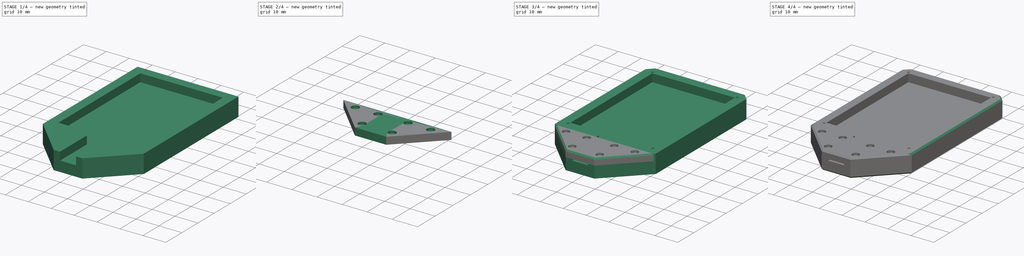
[diagram: build sequence overview — one tinted view per stage of 4, left to right]
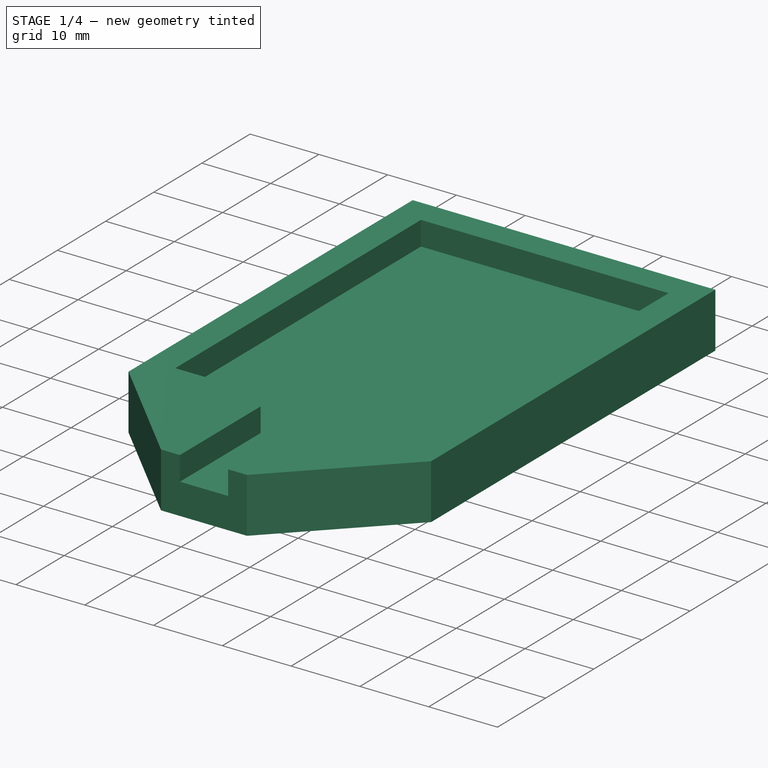
[diagram: stage 1 of 4 — iso view after this stage's code; geometry added in this stage tinted green]
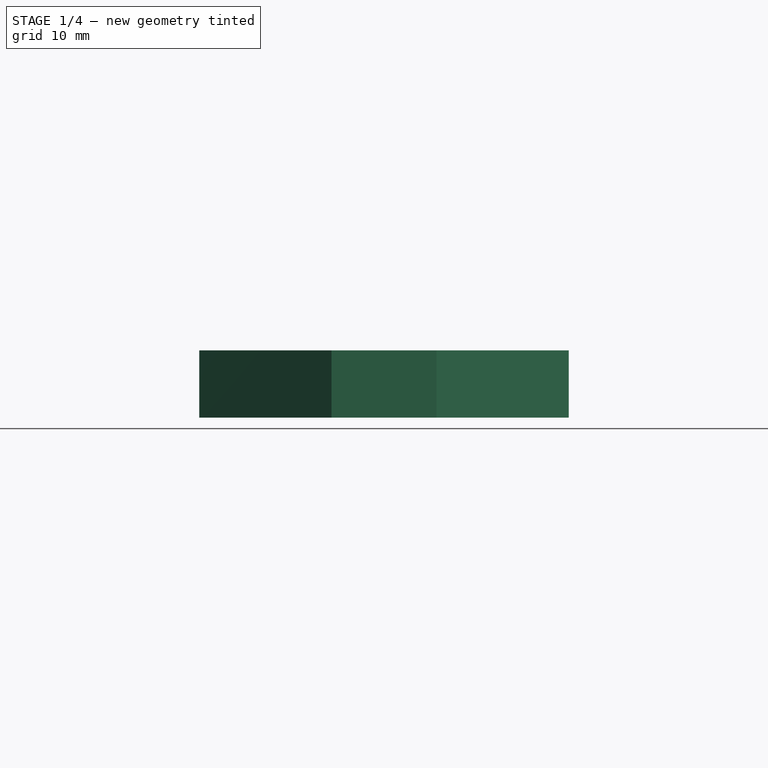
[diagram: stage 1 of 4 — front view after this stage's code; geometry added in this stage tinted green]
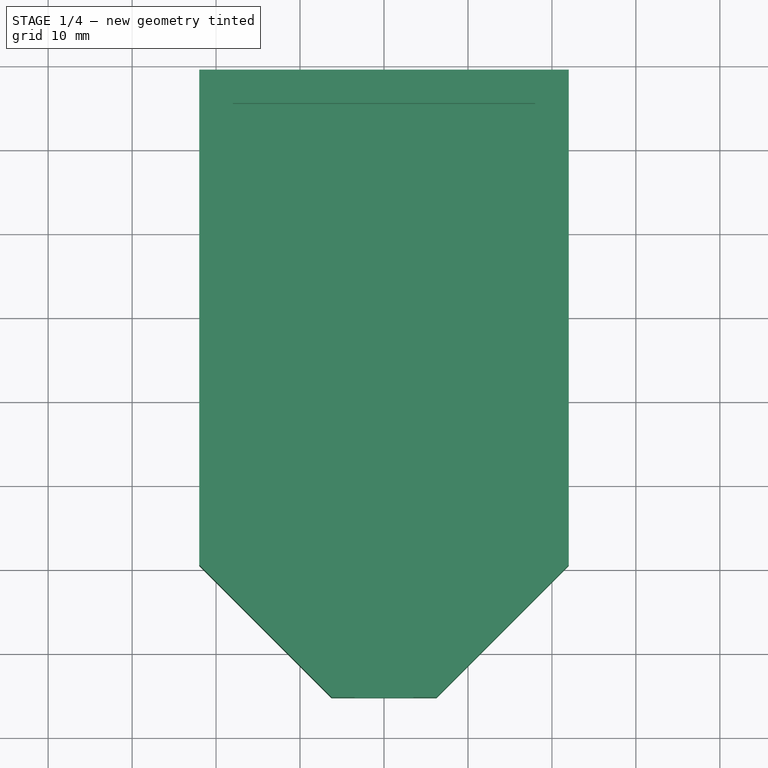
[diagram: stage 1 of 4 — top view after this stage's code; geometry added in this stage tinted green]
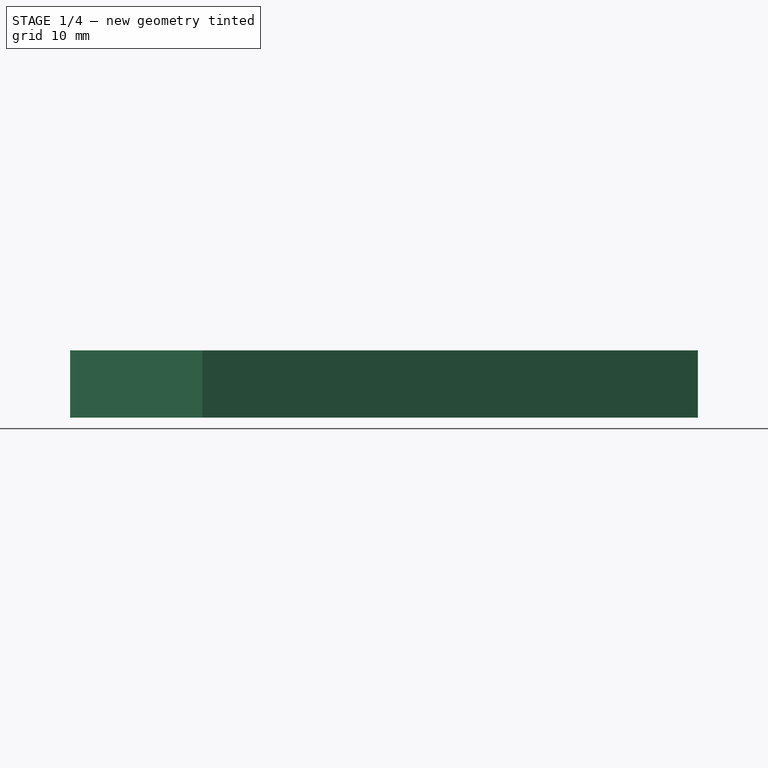
[diagram: stage 1 of 4 — right view after this stage's code; geometry added in this stage tinted green]
FCSTD DOCUMENT  (FreeCAD 0.19R23141 (Git))
Label: microchip_snap_cover
License: All rights reserved
LicenseURL: http://en.wikipedia.org/wiki/All_rights_reserved
objects: Sketcher::SketchObject×5, PartDesign::Chamfer×4, PartDesign::Pad×2, PartDesign::Pocket×2, PartDesign::Hole×2, PartDesign::Body×2
note: 27 computed .brp shape members not serialized (recipe doc carries the construction recipe); baked Part::Feature solids carry a one-line shape summary decoded from their .brp

FEATURE [Sketcher::SketchObject] Sketch
  MapMode = 5
  Support = -> [XY_Plane]
  sketch-geometry (10):
    g0: LineSegment StartX=-22 StartY=29.5 StartZ=0 EndX=22 EndY=29.5 EndZ=0
    g1: LineSegment StartX=22 StartY=29.5 StartZ=0 EndX=22 EndY=-29.5 EndZ=0
    g2: LineSegment [constr] StartX=22 StartY=-29.5 StartZ=0 EndX=-22 EndY=-29.5 EndZ=0
    g3: LineSegment StartX=-22 StartY=-29.5 StartZ=0 EndX=-22 EndY=29.5 EndZ=0
    g4: LineSegment [constr] StartX=-22 StartY=29.5 StartZ=0 EndX=0 EndY=0 EndZ=0
    g5: LineSegment [constr] StartX=0 StartY=0 StartZ=0 EndX=22 EndY=29.5 EndZ=0
    g6: LineSegment [constr] StartX=0 StartY=0 StartZ=0 EndX=-22 EndY=-29.5 EndZ=0
    g7: LineSegment StartX=-6.25 StartY=-45.25 StartZ=0 EndX=6.25 EndY=-45.25 EndZ=0
    g8: LineSegment StartX=6.25 StartY=-45.25 StartZ=0 EndX=22 EndY=-29.5 EndZ=0
    g9: LineSegment StartX=-22 StartY=-29.5 StartZ=0 EndX=-6.25 EndY=-45.25 EndZ=0
  constraints (26):
    c: Coincident(g0,g1)
    c: Coincident(g1,g2)
    c: Coincident(g2,g3)
    c: Coincident(g3,g0)
    c: Horizontal(g0)
    c: Horizontal(g2)
    c: Vertical(g1)
    c: Vertical(g3)
    c: Coincident(g0,g4)
    c: Coincident(g4,g-1)
    c: Coincident(g4,g5)
    c: Coincident(g5,g0)
    c: Coincident(g-1,g6)
    c: Coincident(g6,g2)
    c: Equal(g4,g5)
    c: Equal(g5,g6)
    c: DistanceX(g0,g0) = 44
    c: DistanceY(g3,g3) = 59
    c: Horizontal(g7)
    c: Coincident(g7,g8)
    c: Coincident(g8,g1)
    c: Coincident(g9,g2)
    c: Coincident(g9,g7)
    c: Equal(g9,g8)
    c: DistanceX(g7,g7) = 12.5
    c: DistanceY(g7,g3) = 15.75
FEATURE [PartDesign::Pad] Pad
  Direction = (1,1,1)
  Length = 8
  Length2 = 100
  Profile = -> Sketch
  Type = 0
FEATURE [Sketcher::SketchObject] Sketch001
  MapMode = 5
  Placement = pos=(0,0,8) rot=(0,0,1;0rad)
  Support = -> [Pad]
  sketch-geometry (17):
    g0: LineSegment StartX=-18 StartY=25.5 StartZ=0 EndX=18 EndY=25.5 EndZ=0
    g1: LineSegment StartX=18 StartY=25.5 StartZ=0 EndX=18 EndY=-25.5 EndZ=0
    g2: LineSegment StartX=-18 StartY=-25.5 StartZ=0 EndX=-18 EndY=25.5 EndZ=0
    g3: LineSegment [constr] StartX=-18 StartY=25.5 StartZ=0 EndX=0 EndY=0 EndZ=0
    g4: LineSegment [constr] StartX=0 StartY=0 StartZ=0 EndX=18 EndY=25.5 EndZ=0
    g5: LineSegment [constr] StartX=0 StartY=0 StartZ=0 EndX=-18 EndY=-25.5 EndZ=0
    g6: LineSegment StartX=-18 StartY=-25.5 StartZ=0 EndX=-7.5 EndY=-25.5 EndZ=0
    g7: LineSegment [constr] StartX=-7.5 StartY=-25.5 StartZ=0 EndX=-7.5 EndY=-28.5 EndZ=0
    g8: LineSegment StartX=18 StartY=-25.5 StartZ=0 EndX=7.5 EndY=-25.5 EndZ=0
    g9: LineSegment [constr] StartX=7.5 StartY=-25.5 StartZ=0 EndX=7.5 EndY=-28.5 EndZ=0
    g10: LineSegment [constr] StartX=-7.5 StartY=-28.5 StartZ=0 EndX=-3.5 EndY=-28.5 EndZ=0
    g11: LineSegment StartX=-3.5 StartY=-28.5 StartZ=0 EndX=-3.5 EndY=-60 EndZ=0
    g12: LineSegment StartX=-3.5 StartY=-60 StartZ=0 EndX=3.5 EndY=-60 EndZ=0
    g13: LineSegment StartX=3.5 StartY=-60 StartZ=0 EndX=3.5 EndY=-28.5 EndZ=0
    g14: LineSegment [constr] StartX=3.5 StartY=-28.5 StartZ=0 EndX=7.5 EndY=-28.5 EndZ=0
    g15: LineSegment StartX=-7.5 StartY=-25.5 StartZ=0 EndX=-3.5 EndY=-28.5 EndZ=0
    g16: LineSegment StartX=3.5 StartY=-28.5 StartZ=0 EndX=7.5 EndY=-25.5 EndZ=0
  constraints (46):
    c: Coincident(g0,g1)
    c: Coincident(g2,g0)
    c: Horizontal(g0)
    c: Vertical(g1)
    c: Vertical(g2)
    c: DistanceX(g0,g0) = 36
    c: DistanceY(g2,g2) = 51
    c: Coincident(g0,g3)
    c: Coincident(g3,g-1)
    c: Coincident(g3,g4)
    c: Coincident(g4,g0)
    c: Coincident(g-1,g5)
    c: Equal(g5,g3)
    c: Equal(g3,g4)
    c: Coincident(g2,g6)
    c: Horizontal(g6)
    c: Coincident(g6,g7)
    c: Vertical(g7)
    c: Coincident(g1,g8)
    c: Horizontal(g8)
    c: Coincident(g8,g9)
    c: Vertical(g9)
    c: Equal(g1,g2)
    c: Equal(g8,g6)
    c: DistanceX(g6,g8) = 15
    c: DistanceY(g7,g7) = 3
    c: Equal(g7,g9)
    c: Coincident(g5,g2)
    c: Coincident(g10,g7)
    c: Coincident(g11,g10)
    c: Vertical(g11)
    c: Coincident(g12,g11)
    c: Horizontal(g12)
    c: Coincident(g13,g12)
    c: Vertical(g13)
    c: Coincident(g14,g13)
    c: Coincident(g14,g9)
    c: Equal(g10,g14)
    c: Equal(g13,g11)
    c: DistanceX(g12,g12) = 7
    c: DistanceY(g11,g-1) = 60
    c: Horizontal(g10)
    c: Coincident(g15,g6)
    c: Coincident(g15,g11)
    c: Coincident(g16,g13)
    c: Coincident(g16,g8)
FEATURE [PartDesign::Pocket] Pocket
  BaseFeature = -> Pad
  Length = 3.5
  Length2 = 100
  Profile = -> Sketch001
  Type = 0
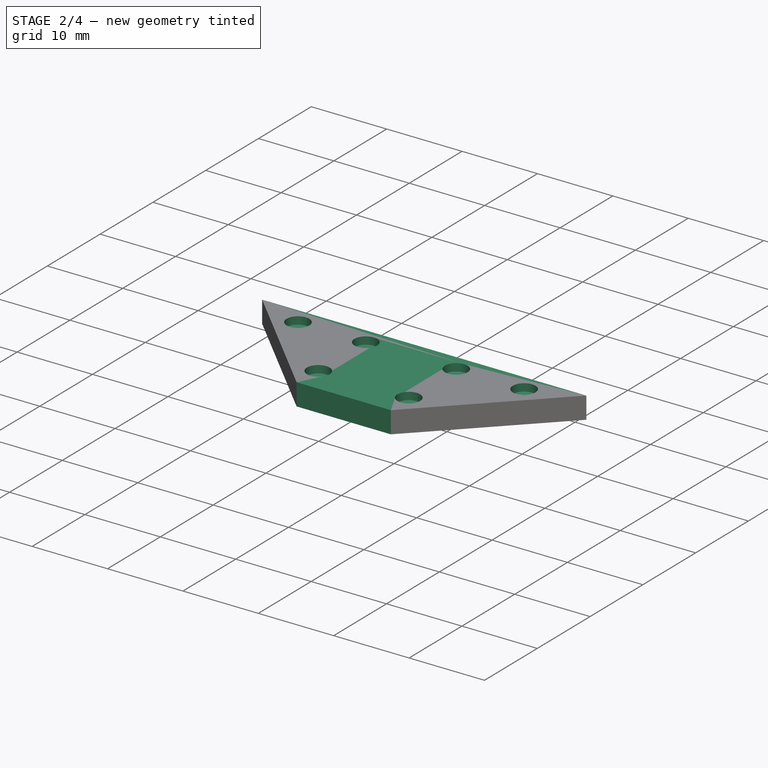
[diagram: stage 2 of 4 — iso view after this stage's code; geometry added in this stage tinted green]
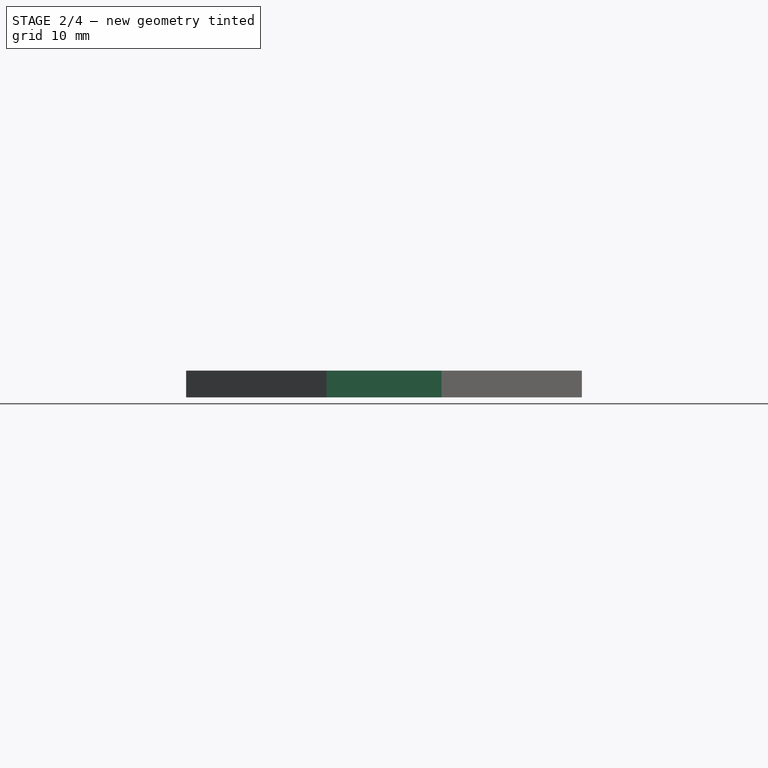
[diagram: stage 2 of 4 — front view after this stage's code; geometry added in this stage tinted green]
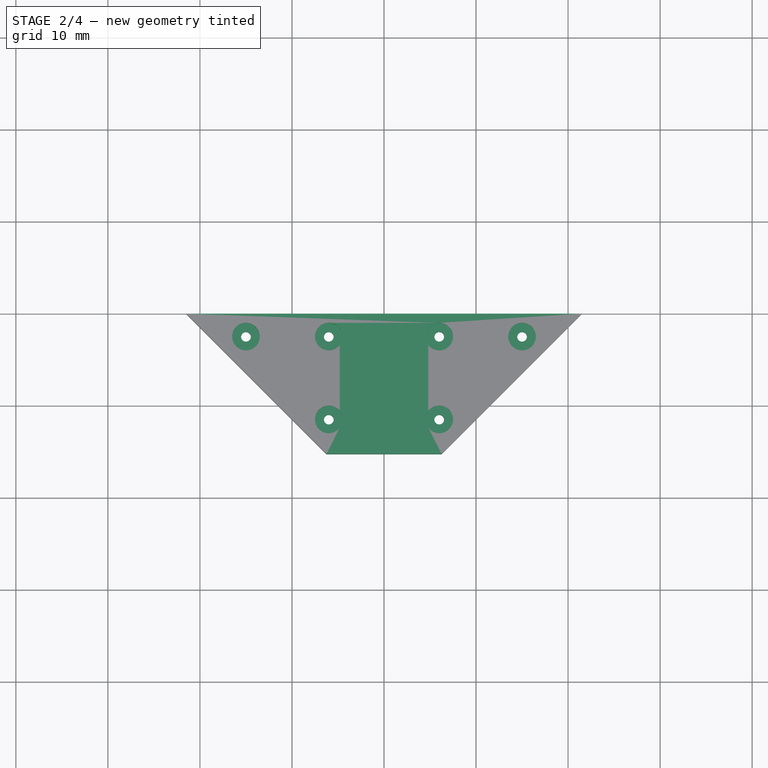
[diagram: stage 2 of 4 — top view after this stage's code; geometry added in this stage tinted green]
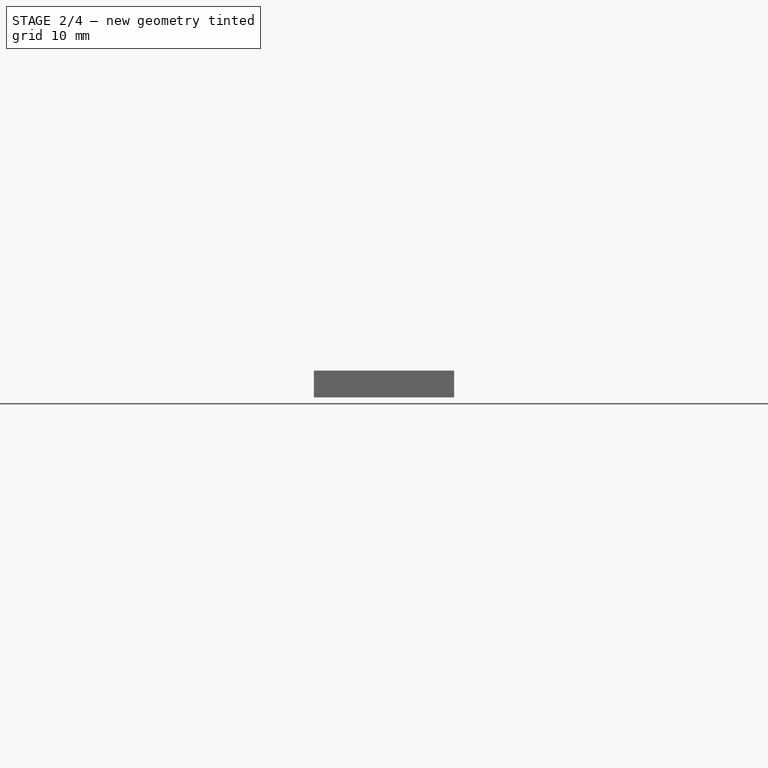
[diagram: stage 2 of 4 — right view after this stage's code; geometry added in this stage tinted green]
FEATURE [Sketcher::SketchObject] Sketch002
  MapMode = 5
  Placement = pos=(0,0,8) rot=(0,0,1;0rad)
  Support = -> [Pocket]
  sketch-geometry (4):
    g0: LineSegment StartX=27.7093 StartY=-50 StartZ=0 EndX=-26.7623 EndY=-50 EndZ=0
    g1: LineSegment StartX=-26.7623 StartY=-50 StartZ=0 EndX=-26.7623 EndY=-30 EndZ=0
    g2: LineSegment StartX=-26.7623 StartY=-30 StartZ=0 EndX=27.7093 EndY=-30 EndZ=0
    g3: LineSegment StartX=27.7093 StartY=-30 StartZ=0 EndX=27.7093 EndY=-50 EndZ=0
  constraints (10):
    c: Coincident(g0,g1)
    c: Coincident(g1,g2)
    c: Coincident(g2,g3)
    c: Coincident(g3,g0)
    c: Horizontal(g0)
    c: Horizontal(g2)
    c: Vertical(g1)
    c: Vertical(g3)
    c: DistanceY(g1,g1) = 20
    c: DistanceY(g1,g-1) = 30
FEATURE [PartDesign::Pocket] Pocket001
  BaseFeature = -> Pocket
  Length = 2.9
  Length2 = 100
  Profile = -> Sketch002
  Type = 0
FEATURE [Sketcher::SketchObject] Sketch003
  AttachmentOffset = pos=(0,0,5.1) rot=(0,0,1;0rad)
  MapMode = 5
  Placement = pos=(0,0,5.1) rot=(0,0,1;0rad)
  Support = -> [XY_Plane001]
  sketch-geometry (6):
    g0: LineSegment StartX=-21.5 StartY=-30 StartZ=0 EndX=21.5 EndY=-30 EndZ=0
    g1: LineSegment StartX=21.5 StartY=-30 StartZ=0 EndX=6.25 EndY=-45.25 EndZ=0
    g2: LineSegment StartX=6.25 StartY=-45.25 StartZ=0 EndX=-6.25 EndY=-45.25 EndZ=0
    g3: LineSegment StartX=-6.25 StartY=-45.25 StartZ=0 EndX=-21.5 EndY=-30 EndZ=0
    g4: LineSegment [constr] StartX=0 StartY=0 StartZ=0 EndX=-21.5 EndY=-30 EndZ=0
    g5: LineSegment [constr] StartX=0 StartY=0 StartZ=0 EndX=21.5 EndY=-30 EndZ=0
  constraints (16):
    c: Horizontal(g0)
    c: Coincident(g0,g1)
    c: Coincident(g1,g2)
    c: Horizontal(g2)
    c: Coincident(g2,g3)
    c: Coincident(g3,g0)
    c: DistanceY(g2,g0) = 15.25
    c: DistanceY(g0,g-1) = 30
    c: DistanceX(g0,g2) = 15.25
    c: Equal(g1,g3)
    c: DistanceX(g2,g2) = 12.5
    c: Coincident(g-1,g4)
    c: Coincident(g4,g0)
    c: Coincident(g-1,g5)
    c: Coincident(g5,g0)
    c: Equal(g5,g4)
FEATURE [PartDesign::Pad] Pad001
  Direction = (1,1,1)
  Length = 2.9
  Length2 = 100
  Profile = -> Sketch003
  Type = 0
FEATURE [PartDesign::Hole] Hole001
  BaseFeature = -> Pad001
  Depth = 25
  DepthType = 0
  Diameter = 1.05
  DrillPoint = 0
  DrillPointAngle = 118
  HoleCutCountersinkAngle = 90
  HoleCutDepth = 1
  HoleCutDiameter = 3
  HoleCutType = 1
  ModelActualThread = false
  Profile = -> Sketch005
  Tapered = false
  TaperedAngle = 90
  ThreadAngle = 0
  ThreadClass = 0
  ThreadCutOffInner = 0
  ThreadCutOffOuter = 0
  ThreadDirection = 0
  ThreadFit = 0
  ThreadPitch = 0
  ThreadSize = 0
  ThreadType = 0
  Threaded = false
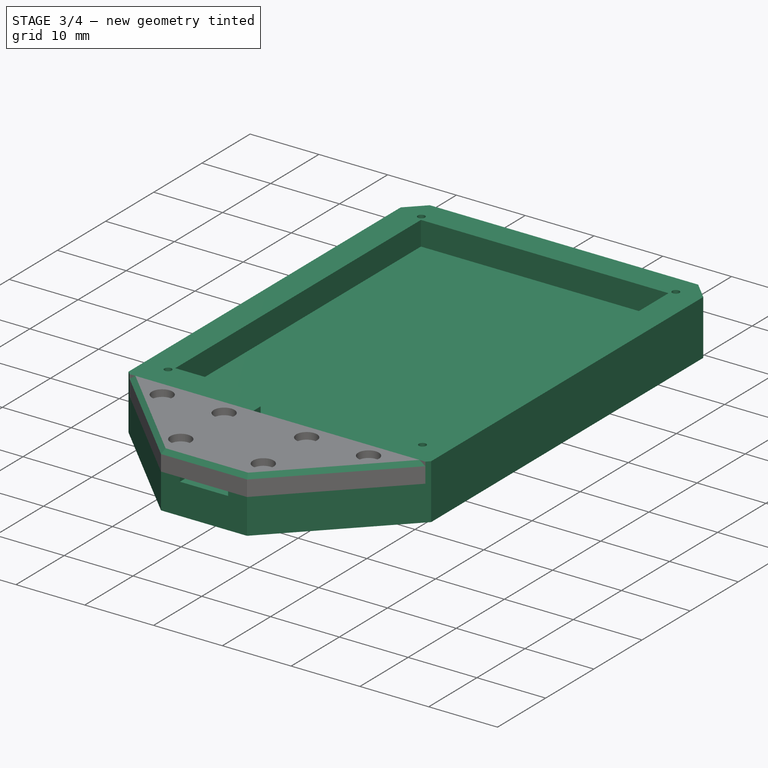
[diagram: stage 3 of 4 — iso view after this stage's code; geometry added in this stage tinted green]
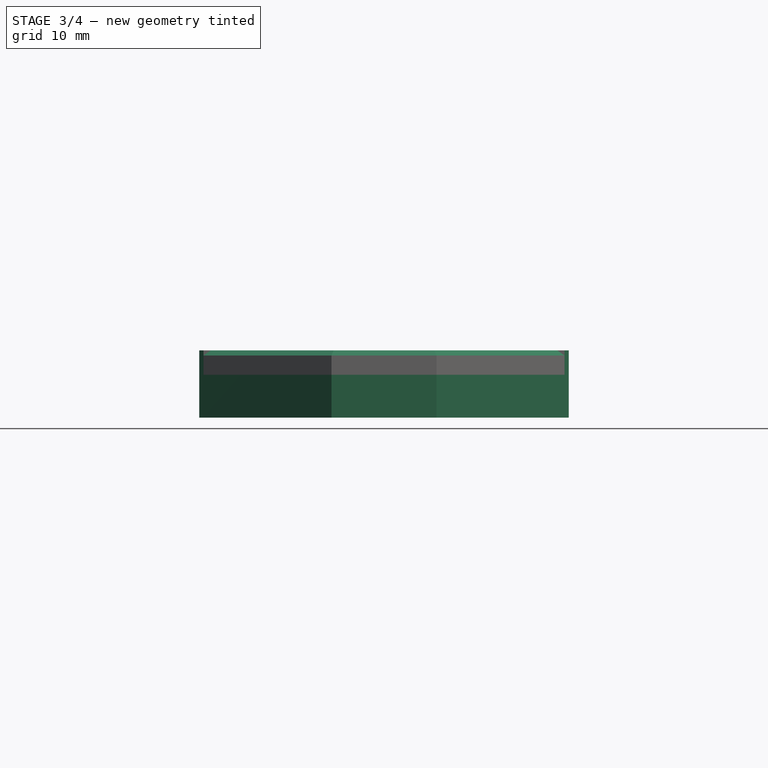
[diagram: stage 3 of 4 — front view after this stage's code; geometry added in this stage tinted green]
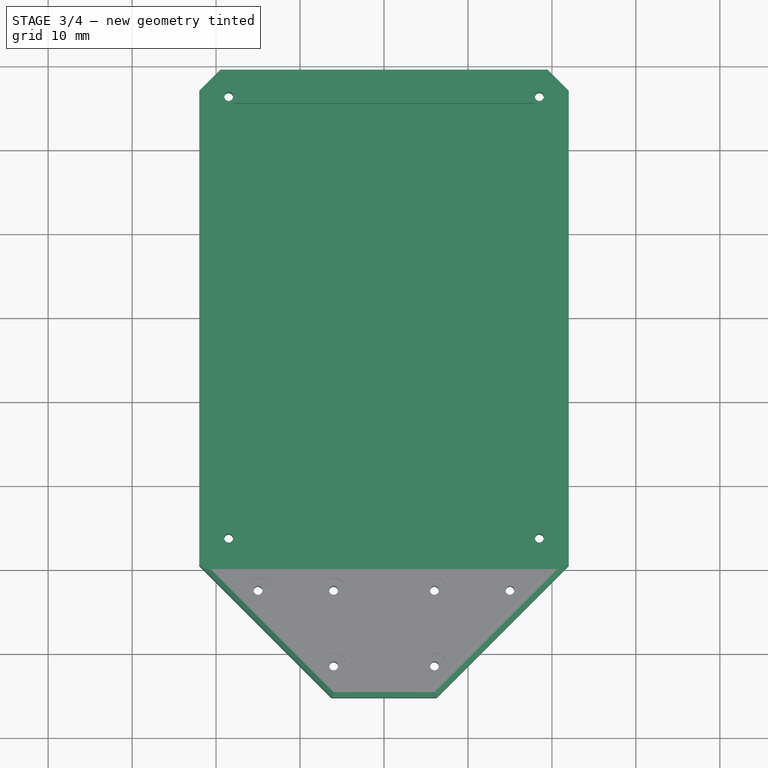
[diagram: stage 3 of 4 — top view after this stage's code; geometry added in this stage tinted green]
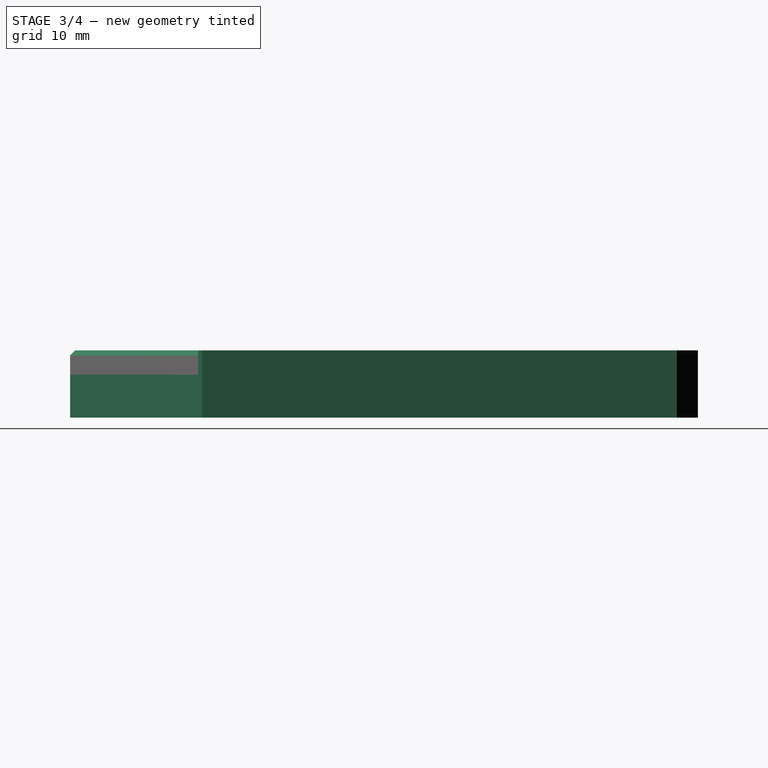
[diagram: stage 3 of 4 — right view after this stage's code; geometry added in this stage tinted green]
FEATURE [Sketcher::SketchObject] Sketch005
  MapMode = 5
  Placement = pos=(0,0,8) rot=(0,0,1;0rad)
  Support = -> [Pocket001]
  sketch-geometry (24):
    g0: LineSegment [constr] StartX=-18.5 StartY=26.3 StartZ=0 EndX=18.5 EndY=26.3 EndZ=0
    g1: LineSegment [constr] StartX=18.5 StartY=26.3 StartZ=0 EndX=18.5 EndY=-26.3 EndZ=0
    g2: LineSegment [constr] StartX=18.5 StartY=-26.3 StartZ=0 EndX=-18.5 EndY=-26.3 EndZ=0
    g3: LineSegment [constr] StartX=-18.5 StartY=-26.3 StartZ=0 EndX=-18.5 EndY=26.3 EndZ=0
    g4: LineSegment [constr] StartX=-18.5 StartY=26.3 StartZ=0 EndX=0 EndY=0 EndZ=0
    g5: LineSegment [constr] StartX=0 StartY=0 StartZ=0 EndX=18.5 EndY=26.3 EndZ=0
    g6: LineSegment [constr] StartX=0 StartY=0 StartZ=0 EndX=-18.5 EndY=-26.3 EndZ=0
    g7: Circle CenterX=-18.5 CenterY=26.3 CenterZ=0 NormalX=0 NormalY=0 NormalZ=1 AngleXU=0 Radius=0.5
    g8: Circle CenterX=18.5 CenterY=26.3 CenterZ=0 NormalX=0 NormalY=0 NormalZ=1 AngleXU=0 Radius=0.5
    g9: Circle CenterX=18.5 CenterY=-26.3 CenterZ=0 NormalX=0 NormalY=0 NormalZ=1 AngleXU=0 Radius=0.5
    g10: Circle CenterX=-18.5 CenterY=-26.3 CenterZ=0 NormalX=0 NormalY=0 NormalZ=1 AngleXU=0 Radius=0.5
    g11: Circle CenterX=-15 CenterY=-32.5 CenterZ=0 NormalX=0 NormalY=0 NormalZ=1 AngleXU=0 Radius=0.5
    g12: Circle CenterX=-6 CenterY=-32.5 CenterZ=0 NormalX=0 NormalY=0 NormalZ=1 AngleXU=0 Radius=0.5
    g13: Circle CenterX=6 CenterY=-32.5 CenterZ=0 NormalX=0 NormalY=0 NormalZ=1 AngleXU=0 Radius=0.5
    g14: Circle CenterX=15 CenterY=-32.5 CenterZ=0 NormalX=0 NormalY=0 NormalZ=1 AngleXU=0 Radius=0.5
    g15: Circle CenterX=6 CenterY=-41.5 CenterZ=0 NormalX=0 NormalY=0 NormalZ=1 AngleXU=0 Radius=0.5
    g16: Circle CenterX=-6 CenterY=-41.5 CenterZ=0 NormalX=0 NormalY=0 NormalZ=1 AngleXU=0 Radius=0.5
    g17: LineSegment [constr] StartX=-15 StartY=-32.5 StartZ=0 EndX=-6 EndY=-32.5 EndZ=0
    g18: LineSegment [constr] StartX=-6 StartY=-32.5 StartZ=0 EndX=-6 EndY=-41.5 EndZ=0
    g19: LineSegment [constr] StartX=6 StartY=-41.5 StartZ=0 EndX=6 EndY=-32.5 EndZ=0
    g20: LineSegment [constr] StartX=6 StartY=-32.5 StartZ=0 EndX=15 EndY=-32.5 EndZ=0
    g21: LineSegment [constr] StartX=-6 StartY=-32.5 StartZ=0 EndX=6 EndY=-32.5 EndZ=0
    g22: LineSegment [constr] StartX=-6 StartY=-32.5 StartZ=0 EndX=0 EndY=0 EndZ=0
    g23: LineSegment [constr] StartX=0 StartY=0 StartZ=0 EndX=6 EndY=-32.5 EndZ=0
  constraints (58):
    c: Coincident(g0,g1)
    c: Coincident(g1,g2)
    c: Coincident(g2,g3)
    c: Coincident(g3,g0)
    c: Horizontal(g0)
    c: Horizontal(g2)
    c: Vertical(g1)
    c: Vertical(g3)
    c: DistanceX(g0,g0) = 37
    c: DistanceY(g3,g3) = 52.6
    c: Coincident(g0,g4)
    c: Coincident(g4,g-1)
    c: Coincident(g4,g5)
    c: Coincident(g5,g0)
    c: Coincident(g-1,g6)
    c: Coincident(g6,g2)
    c: Equal(g6,g4)
    c: Equal(g4,g5)
    c: Coincident(g7,g0)
    c: Coincident(g8,g0)
    c: Coincident(g9,g1)
    c: Coincident(g10,g2)
    c: Diameter(g10) = 1
    c: Equal(g10,g7)
    c: Equal(g10,g8)
    c: Equal(g10,g9)
    c: Coincident(g17,g11)
    c: Coincident(g17,g12)
    c: Horizontal(g17)
    c: Coincident(g17,g18)
    c: Coincident(g18,g16)
    c: Vertical(g18)
    c: Coincident(g19,g15)
    c: Coincident(g19,g13)
    c: Coincident(g19,g20)
    c: Coincident(g20,g14)
    c: Horizontal(g20)
    c: Vertical(g19)
    c: Equal(g20,g19)
    c: Equal(g19,g18)
    c: Equal(g18,g17)
    c: Coincident(g21,g12)
    c: Coincident(g21,g13)
    c: Horizontal(g21)
    c: Coincident(g22,g12)
    c: Coincident(g22,g-1)
    c: Coincident(g23,g-1)
    c: Coincident(g23,g13)
    c: Equal(g23,g22)
    c: DistanceX(g21,g21) = 12
    c: DistanceY(g12,g-1) = 32.5
    c: Equal(g11,g12)
    c: Equal(g12,g16)
    c: Equal(g16,g15)
    c: Equal(g15,g13)
    c: Equal(g13,g14)
    c: Equal(g14,g9)
    c: DistanceY(g18,g18) = 9
FEATURE [PartDesign::Hole] Hole
  BaseFeature = -> Pocket001
  Depth = 25
  DepthType = 0
  Diameter = 1.05
  DrillPoint = 0
  DrillPointAngle = 118
  HoleCutCountersinkAngle = 90
  HoleCutDepth = 0
  HoleCutDiameter = 0
  HoleCutType = 0
  ModelActualThread = false
  Profile = -> Sketch005
  Tapered = false
  TaperedAngle = 90
  ThreadAngle = 0
  ThreadClass = 0
  ThreadCutOffInner = 0
  ThreadCutOffOuter = 0
  ThreadDirection = 0
  ThreadFit = 0
  ThreadPitch = 0
  ThreadSize = 0
  ThreadType = 0
  Threaded = false
FEATURE [PartDesign::Chamfer] Chamfer
  Angle = 45
  Base = -> Hole [Edge10,Edge2]
  BaseFeature = -> Hole
  ChamferType = 0
  FlipDirection = false
  Size = 2.5
  Size2 = 1
  SupportTransform = false
FEATURE [PartDesign::Body] Body
  Group = -> [Sketch,Pad,Sketch001,Pocket,Sketch002,Pocket001,Hole,Chamfer,Chamfer001,Chamfer002]
  Origin = -> Origin
  Tip = -> Chamfer002
FEATURE [PartDesign::Chamfer] Chamfer003
  Angle = 45
  Base = -> Hole001 [Edge7,Edge18,Edge10]
  BaseFeature = -> Hole001
  ChamferType = 0
  FlipDirection = false
  Size = 0.6
  Size2 = 1
  SupportTransform = false
FEATURE [PartDesign::Body] Body001
  Group = -> [Sketch003,Pad001,Sketch005,Hole001,Chamfer003]
  Origin = -> Origin001
  Tip = -> Chamfer003
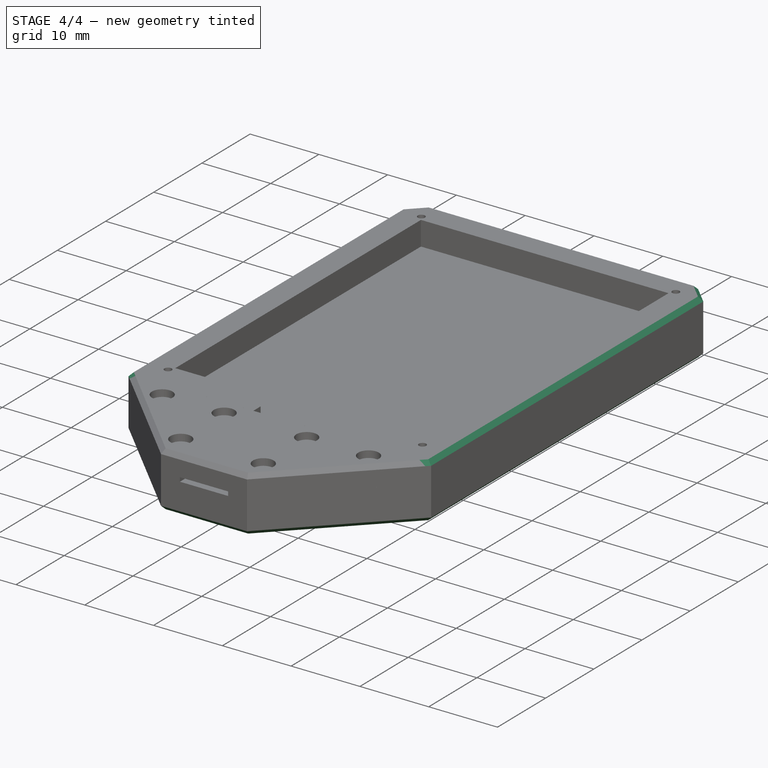
[diagram: stage 4 of 4 — iso view after this stage's code; geometry added in this stage tinted green]
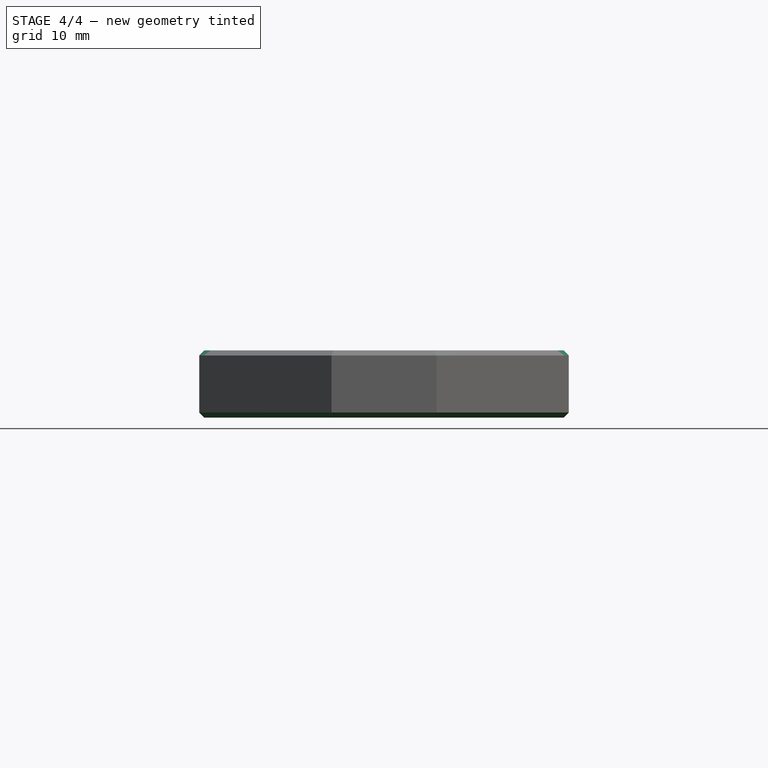
[diagram: stage 4 of 4 — front view after this stage's code; geometry added in this stage tinted green]
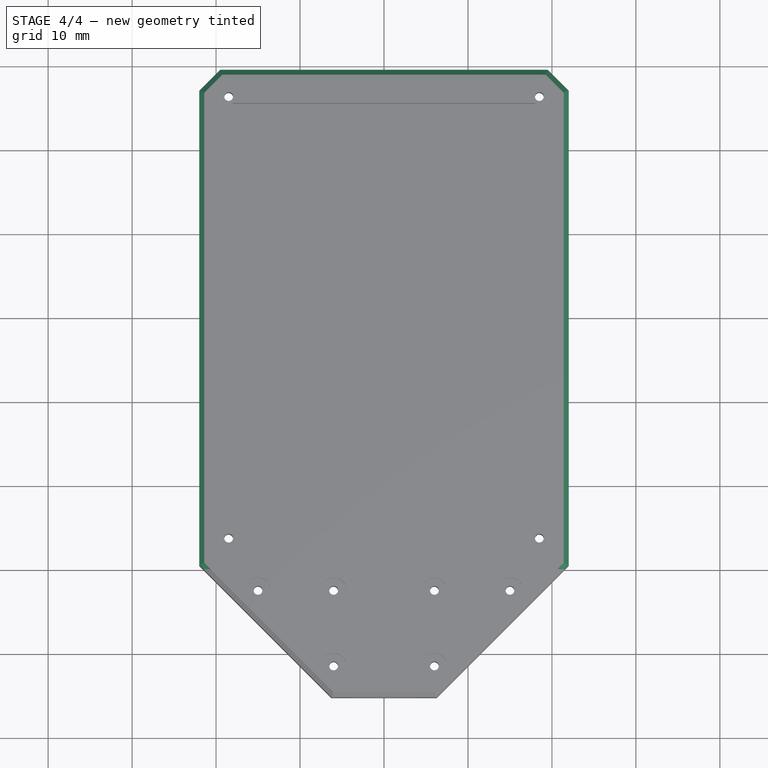
[diagram: stage 4 of 4 — top view after this stage's code; geometry added in this stage tinted green]
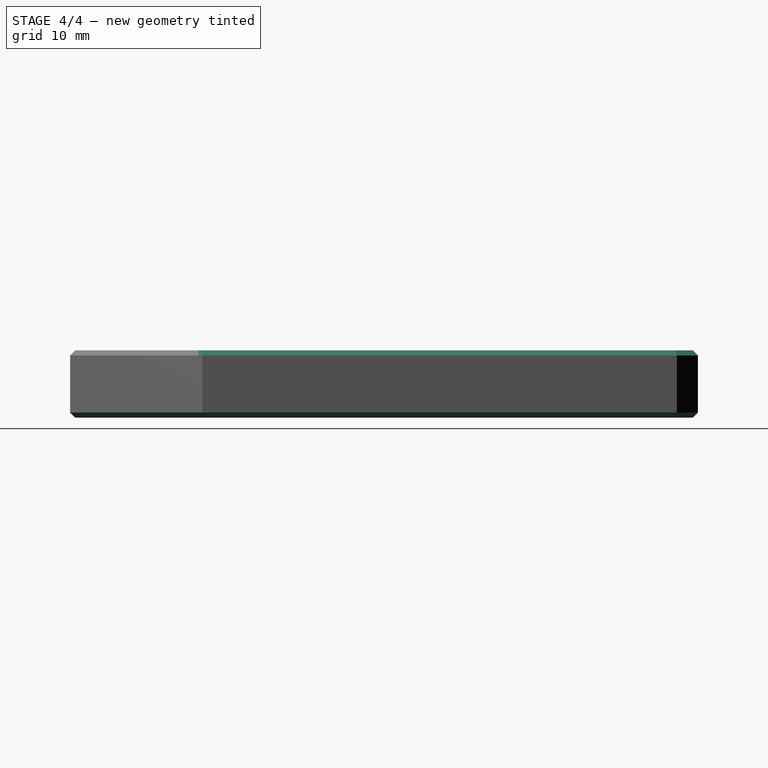
[diagram: stage 4 of 4 — right view after this stage's code; geometry added in this stage tinted green]
FEATURE [PartDesign::Chamfer] Chamfer001
  Angle = 45
  Base = -> Chamfer [Face2]
  BaseFeature = -> Chamfer
  ChamferType = 0
  FlipDirection = false
  Size = 0.6
  Size2 = 1
  SupportTransform = false
FEATURE [PartDesign::Chamfer] Chamfer002
  Angle = 45
  Base = -> Chamfer001 [Edge16,Edge18,Edge14,Edge12,Edge6,Edge3,Edge11]
  BaseFeature = -> Chamfer001
  ChamferType = 0
  FlipDirection = false
  Size = 0.6
  Size2 = 1
  SupportTransform = false
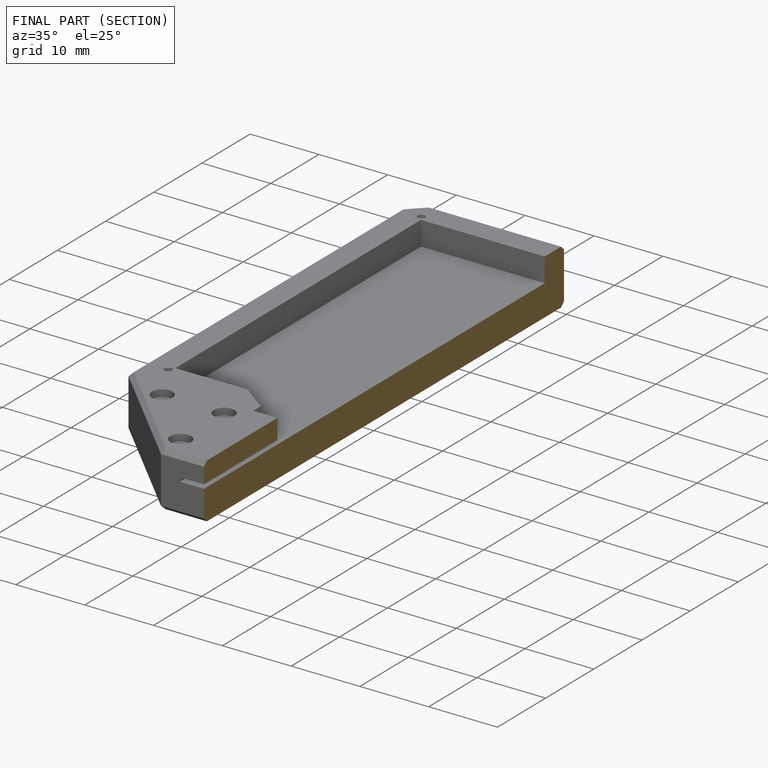
[diagram: finished part — half-section view (interior)]
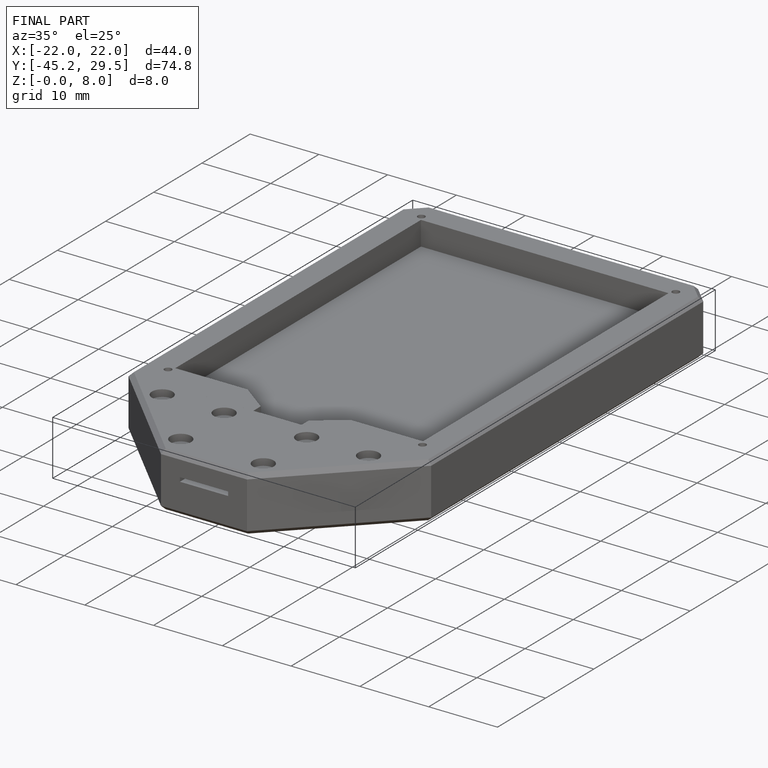
[diagram: finished part — iso view with bounding-box wireframe]
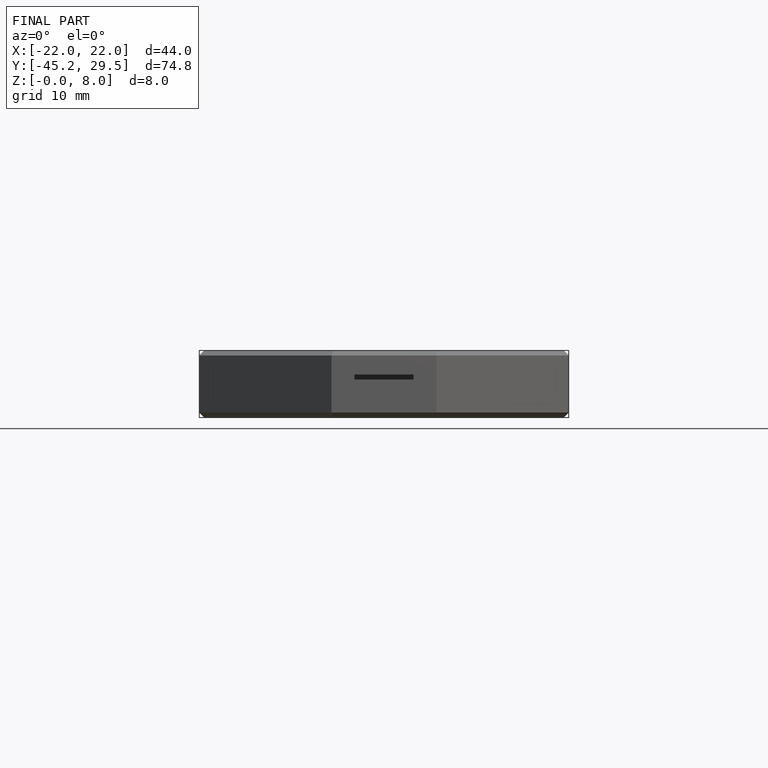
[diagram: finished part — front view with bounding-box wireframe]
